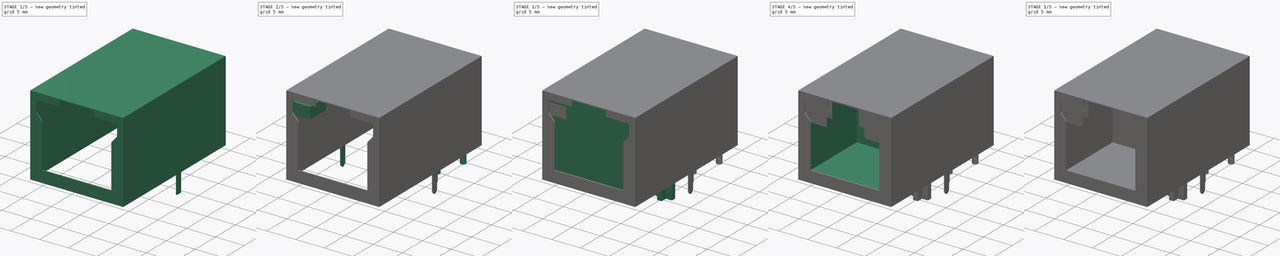
[diagram: build sequence overview — one tinted view per stage of 5, left to right]
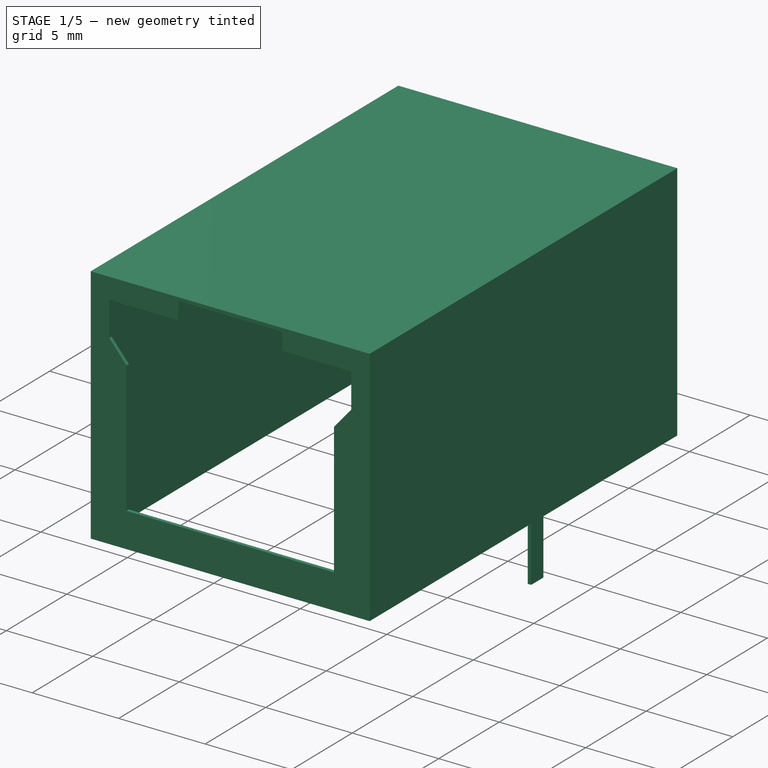
[diagram: stage 1 of 5 — iso view after this stage's code; geometry added in this stage tinted green]
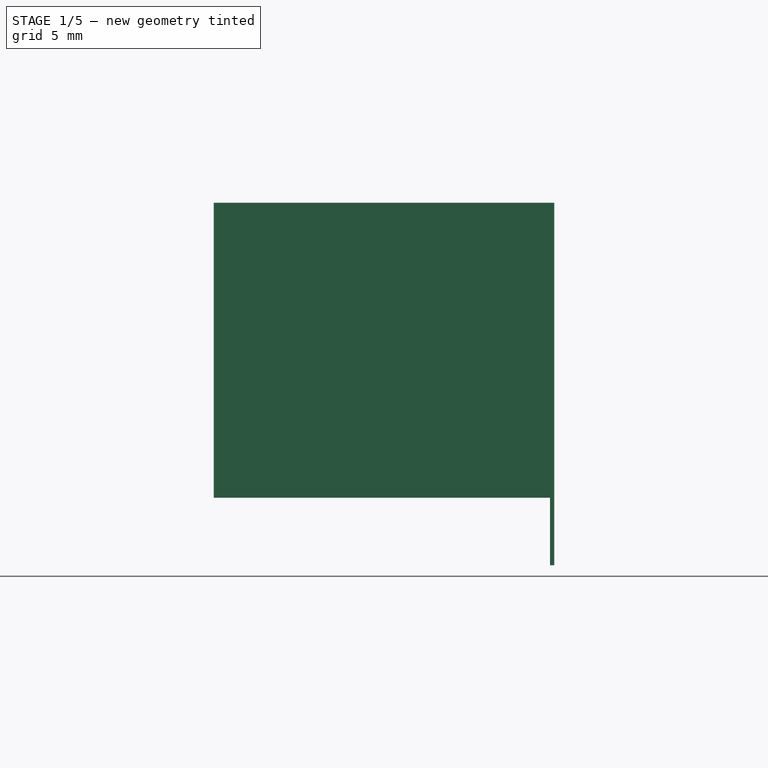
[diagram: stage 1 of 5 — front view after this stage's code; geometry added in this stage tinted green]
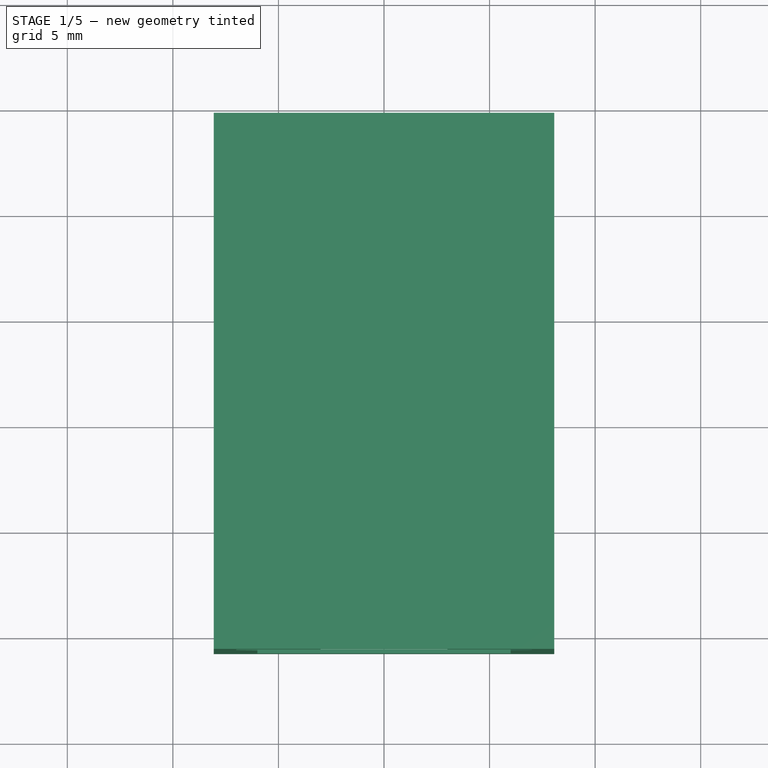
[diagram: stage 1 of 5 — top view after this stage's code; geometry added in this stage tinted green]
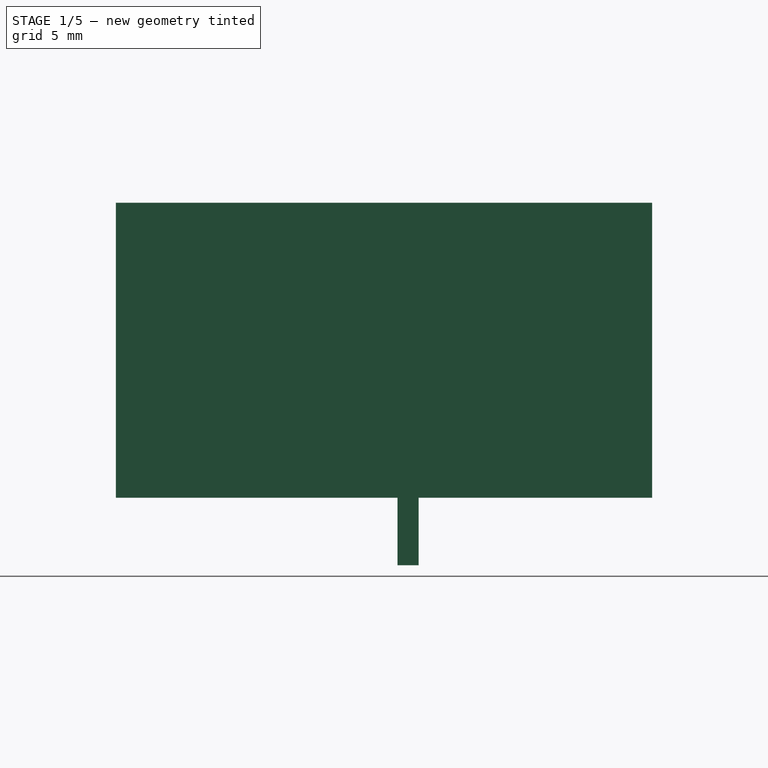
[diagram: stage 1 of 5 — right view after this stage's code; geometry added in this stage tinted green]
FCSTD DOCUMENT  (FreeCAD 0.16R6420 (Git))
Label: CONN_RJ45_MagJack_POEp
License: All rights reserved
LicenseURL: http://en.wikipedia.org/wiki/All_rights_reserved
objects: Sketcher::SketchObject×14, PartDesign::Pad×7, PartDesign::Pocket×7, PartDesign::Mirrored×3, PartDesign::Chamfer×1, Part::MultiFuse×1
note: 47 computed .brp shape members not serialized (recipe doc carries the construction recipe); baked Part::Feature solids carry a one-line shape summary decoded from their .brp

FEATURE [Sketcher::SketchObject] Sketch006  label="Metal_Base"
  expr: Constraints[13] = 14.61mm
  expr: Constraints[12] = -(10.79mm)
  expr: Constraints[14] = 16.13mm
  sketch-geometry (5):
    g0: LineSegment StartX=8.065 StartY=14.61 StartZ=0 EndX=-8.065 EndY=14.61 EndZ=0
    g1: LineSegment StartX=-8.065 StartY=14.61 StartZ=0 EndX=-8.065 EndY=-10.79 EndZ=0
    g2: LineSegment StartX=-8.065 StartY=-10.79 StartZ=0 EndX=8.065 EndY=-10.79 EndZ=0
    g3: LineSegment StartX=8.065 StartY=-10.79 StartZ=0 EndX=8.065 EndY=14.61 EndZ=0
    g4: LineSegment [constr] StartX=0 StartY=14.61 StartZ=0 EndX=0 EndY=-10.79 EndZ=0
  constraints (15):
    c: Coincident(g0,g1)
    c: Coincident(g1,g2)
    c: Coincident(g2,g3)
    c: Coincident(g3,g0)
    c: Horizontal(g0)
    c: Horizontal(g2)
    c: Vertical(g1)
    c: Vertical(g3)
    c: Vertical(g4)
    c: Symmetric(g2,g2,g4)
    c: Symmetric(g0,g0,g4)
    c: PointOnObject(g-1,g4)
    c: DistanceY(g-1,g4) = -10.79
    c: DistanceY(g-1,g4) = 14.61
    c: DistanceX(g2) = 16.13
FEATURE [PartDesign::Pad] Pad002  label="Metal_Pad"
  Length = 13.97
  Length2 = 100
  Sketch = -> Sketch006
  Type = 0
FEATURE [Sketcher::SketchObject] Sketch007  label="MetalCutInside"
  ExternalGeometry = -> [Pad002]
  Placement = pos=(0,0,0) rot=(1,0,0;3.14159rad)
  Support = -> Pad002 [Face5]
  sketch-geometry (5):
    g0: LineSegment StartX=-7.865 StartY=10.59 StartZ=0 EndX=7.865 EndY=10.59 EndZ=0
    g1: LineSegment StartX=7.865 StartY=10.59 StartZ=0 EndX=7.865 EndY=-14.41 EndZ=0
    g2: LineSegment StartX=7.865 StartY=-14.41 StartZ=0 EndX=-7.865 EndY=-14.41 EndZ=0
    g3: LineSegment StartX=-7.865 StartY=-14.41 StartZ=0 EndX=-7.865 EndY=10.59 EndZ=0
    g4: GeomPoint [constr] X=0 Y=10.59 Z=0
  constraints (13):
    c: Coincident(g0,g1)
    c: Coincident(g1,g2)
    c: Coincident(g2,g3)
    c: Coincident(g3,g0)
    c: Horizontal(g0)
    c: Horizontal(g2)
    c: Vertical(g1)
    c: Vertical(g3)
    c: DistanceX(g0,g-3) = -0.2
    c: Symmetric(g0,g0,g4)
    c: PointOnObject(g4,g-2)
    c: DistanceY(g0,g-3) = 0.2
    c: DistanceY(g1,g-4) = -0.2
FEATURE [PartDesign::Pocket] Pocket005  label="MetalCutInside_Pocket"
  Length = 13.7
  Sketch = -> Sketch007
  Type = 0
FEATURE [Sketcher::SketchObject] Sketch008  label="Metal_SoecketCutOut"
  ExternalGeometry = -> [Pocket005]
  Placement = pos=(0,-10.79,0) rot=(1,0,0;1.5708rad)
  Support = -> Pocket005 [Face6]
  sketch-geometry (13):
    g0: LineSegment StartX=-6 StartY=2 StartZ=0 EndX=6 EndY=2 EndZ=0
    g1: LineSegment StartX=6 StartY=2 StartZ=0 EndX=6 EndY=9.6 EndZ=0
    g2: LineSegment StartX=6 StartY=9.6 StartZ=0 EndX=7 EndY=10.77 EndZ=0
    g3: LineSegment StartX=7 StartY=10.77 StartZ=0 EndX=7 EndY=12.77 EndZ=0
    g4: LineSegment StartX=7 StartY=12.77 StartZ=0 EndX=3 EndY=12.77 EndZ=0
    g5: LineSegment StartX=3 StartY=12.77 StartZ=0 EndX=3 EndY=13.77 EndZ=0
    g6: LineSegment StartX=3 StartY=13.77 StartZ=0 EndX=-3 EndY=13.77 EndZ=0
    g7: LineSegment StartX=-3 StartY=13.77 StartZ=0 EndX=-3 EndY=12.77 EndZ=0
    g8: LineSegment StartX=-3 StartY=12.77 StartZ=0 EndX=-7 EndY=12.77 EndZ=0
    g9: LineSegment StartX=-7 StartY=12.77 StartZ=0 EndX=-7 EndY=10.77 EndZ=0
    g10: LineSegment StartX=-7 StartY=10.77 StartZ=0 EndX=-6 EndY=9.6 EndZ=0
    g11: LineSegment StartX=-6 StartY=9.6 StartZ=0 EndX=-6 EndY=2 EndZ=0
    g12: LineSegment [constr] StartX=0 StartY=0 StartZ=0 EndX=0 EndY=2 EndZ=0
  constraints (38):
    c: Horizontal(g0)
    c: Coincident(g0,g1)
    c: Vertical(g1)
    c: Coincident(g1,g2)
    c: Coincident(g2,g3)
    c: Vertical(g3)
    c: Coincident(g3,g4)
    c: Horizontal(g4)
    c: Coincident(g4,g5)
    c: Vertical(g5)
    c: Coincident(g5,g6)
    c: Horizontal(g6)
    c: Coincident(g6,g7)
    c: Vertical(g7)
    c: Coincident(g7,g8)
    c: Horizontal(g8)
    c: Coincident(g8,g9)
    c: Vertical(g9)
    c: Coincident(g9,g10)
    c: Coincident(g11,g10)
    c: Coincident(g11,g0)
    c: Vertical(g11)
    c: Equal(g5,g7)
    c: Equal(g8,g4)
    c: Equal(g9,g3)
    c: Equal(g10,g2)
    c: Equal(g1,g11)
    c: Vertical(g12)
    c: Symmetric(g0,g0,g12)
    c: Coincident(g12,g-1)
    c: DistanceY(g12) = 2
    c: DistanceX(g0) = 12
    c: DistanceY(g1) = 7.6
    c: DistanceY(g3) = 2
    c: DistanceY(g5,g-3) = 0.2
    c: DistanceX(g3,g8) = -14
    c: DistanceY(g5) = 1
    c: DistanceX(g6) = -6
FEATURE [PartDesign::Pocket] Pocket006  label="Metal_SoecketCutOut_Pocket"
  Length = 5
  Sketch = -> Sketch008
  Type = 2
FEATURE [Sketcher::SketchObject] Sketch013  label="Metal_ShieldPin"
  Placement = pos=(0,0,0) rot=(1,0,0;3.14159rad)
  Support = -> Pocket006 [Face4]
  expr: Constraints[10] = 16.13mm / 2
  sketch-geometry (5):
    g0: LineSegment StartX=7.865 StartY=-2.55 StartZ=0 EndX=8.065 EndY=-2.55 EndZ=0
    g1: LineSegment StartX=8.065 StartY=-2.55 StartZ=0 EndX=8.065 EndY=-3.55 EndZ=0
    g2: LineSegment StartX=8.065 StartY=-3.55 StartZ=0 EndX=7.865 EndY=-3.55 EndZ=0
    g3: LineSegment StartX=7.865 StartY=-3.55 StartZ=0 EndX=7.865 EndY=-2.55 EndZ=0
    g4: GeomPoint [constr] X=8.065 Y=-3.05 Z=0
  constraints (13):
    c: Coincident(g0,g1)
    c: Coincident(g1,g2)
    c: Coincident(g2,g3)
    c: Coincident(g3,g0)
    c: Horizontal(g0)
    c: Horizontal(g2)
    c: Vertical(g1)
    c: Vertical(g3)
    c: DistanceY(g1) = -1
    c: DistanceX(g0) = 0.2
    c: DistanceX(g0) = 8.065
    c: Symmetric(g1,g1,g4)
    c: DistanceY(g-1,g4) = -3.05
FEATURE [PartDesign::Pad] Pad006  label="Metal_ShieldPin_Pad"
  Length = 3.2
  Length2 = 100
  Sketch = -> Sketch013
  Type = 0
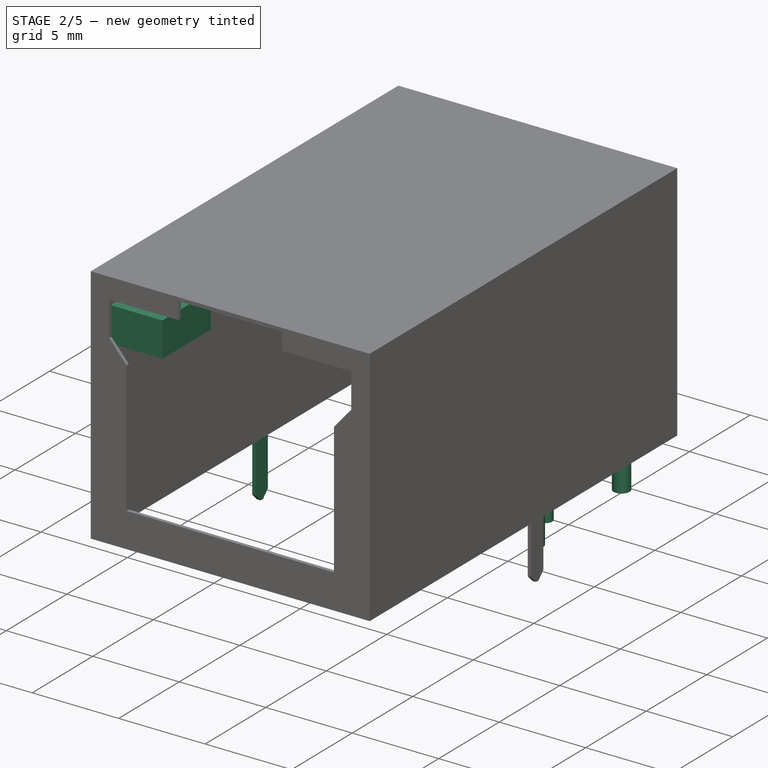
[diagram: stage 2 of 5 — iso view after this stage's code; geometry added in this stage tinted green]
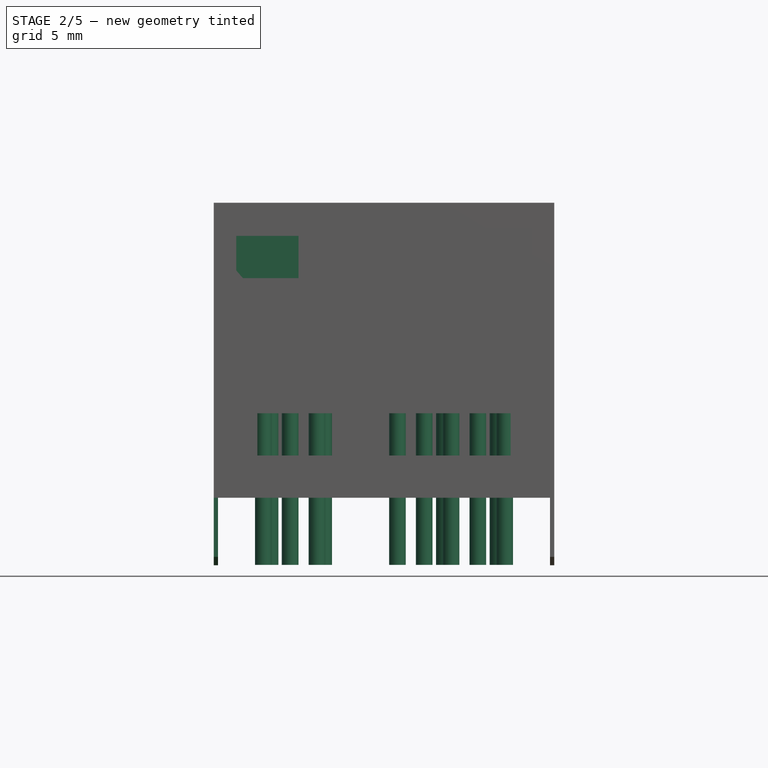
[diagram: stage 2 of 5 — front view after this stage's code; geometry added in this stage tinted green]
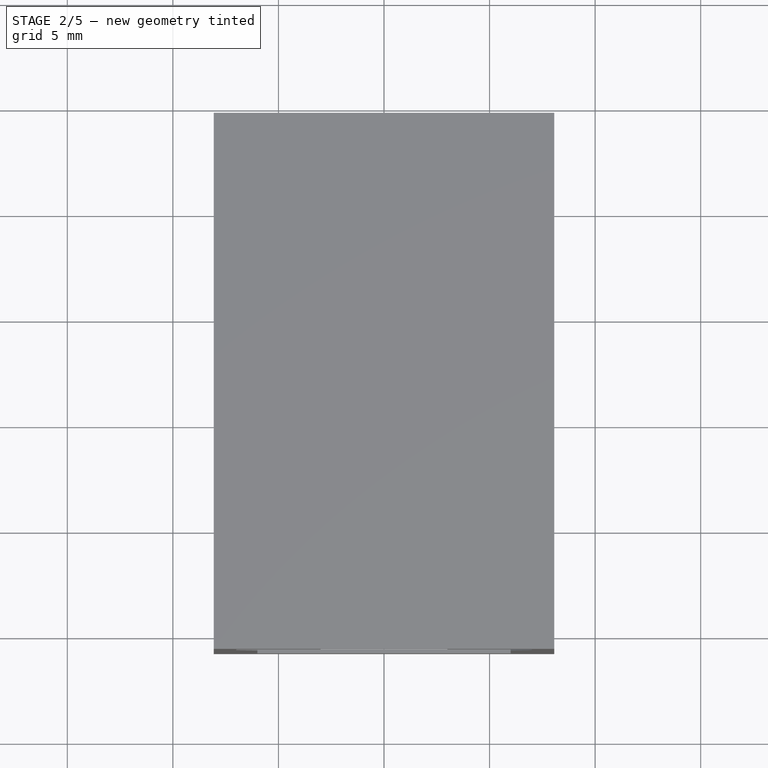
[diagram: stage 2 of 5 — top view after this stage's code; geometry added in this stage tinted green]
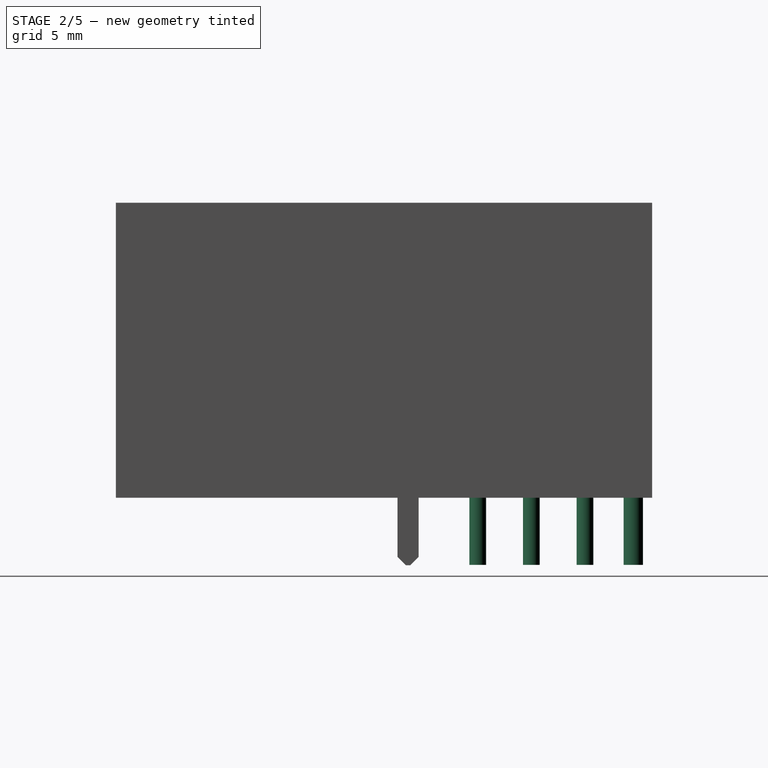
[diagram: stage 2 of 5 — right view after this stage's code; geometry added in this stage tinted green]
FEATURE [PartDesign::Pad] Pad004  label="LED_Left_Green_Pad"
  Length = 4
  Length2 = 100
  Placement = pos=(0,-10.6,0) rot=(1,0,0;1.5708rad)
  Reversed = true
  Sketch = -> Sketch011
  Type = 0
FEATURE [Sketcher::SketchObject] Sketch012  label="Pins"
  expr: Constraints[33] = (1.02mm - 0.1mm) / 2
  expr: Constraints[32] = (0.89mm - 0.1mm) / 2
  sketch-geometry (20):
    g0: LineSegment [constr] StartX=-5.715 StartY=0 StartZ=0 EndX=5.715 EndY=0 EndZ=0
    g1: LineSegment [constr] StartX=-5.715 StartY=8.89 StartZ=0 EndX=5.715 EndY=8.89 EndZ=0
    g2: LineSegment [constr] StartX=-5.715 StartY=11.43 StartZ=0 EndX=5.715 EndY=11.43 EndZ=0
    g3: LineSegment [constr] StartX=-5.715 StartY=6.35 StartZ=0 EndX=5.715 EndY=6.35 EndZ=0
    g4: LineSegment [constr] StartX=-5.715 StartY=13.72 StartZ=0 EndX=5.715 EndY=13.72 EndZ=0
    g5: LineSegment [constr] StartX=-5.715 StartY=0 StartZ=0 EndX=-5.715 EndY=13.72 EndZ=0
    g6: Circle CenterX=-4.445 CenterY=11.43 CenterZ=0 NormalX=0 NormalY=0 NormalZ=1 Radius=0.395
    g7: Circle CenterX=-4.445 CenterY=6.35 CenterZ=0 NormalX=0 NormalY=0 NormalZ=1 Radius=0.395
    g8: Circle CenterX=-5.715 CenterY=8.89 CenterZ=0 NormalX=0 NormalY=0 NormalZ=1 Radius=0.395
    g9: Circle CenterX=-3.175 CenterY=8.89 CenterZ=0 NormalX=0 NormalY=0 NormalZ=1 Radius=0.395
    g10: Circle CenterX=3.175 CenterY=6.35 CenterZ=0 NormalX=0 NormalY=0 NormalZ=1 Radius=0.395
    g11: Circle CenterX=5.715 CenterY=6.35 CenterZ=0 NormalX=0 NormalY=0 NormalZ=1 Radius=0.395
    g12: Circle CenterX=0.635 CenterY=6.35 CenterZ=0 NormalX=0 NormalY=0 NormalZ=1 Radius=0.395
    g13: Circle CenterX=1.905 CenterY=8.89 CenterZ=0 NormalX=0 NormalY=0 NormalZ=1 Radius=0.395
    g14: Circle CenterX=4.445 CenterY=8.89 CenterZ=0 NormalX=0 NormalY=0 NormalZ=1 Radius=0.395
    g15: Circle CenterX=2.925 CenterY=13.72 CenterZ=0 NormalX=0 NormalY=0 NormalZ=1 Radius=0.46
    g16: Circle CenterX=5.465 CenterY=13.72 CenterZ=0 NormalX=0 NormalY=0 NormalZ=1 Radius=0.46
    g17: Circle CenterX=-5.465 CenterY=13.72 CenterZ=0 NormalX=0 NormalY=0 NormalZ=1 Radius=0.46
    g18: Circle CenterX=-2.925 CenterY=13.72 CenterZ=0 NormalX=0 NormalY=0 NormalZ=1 Radius=0.46
    g19: LineSegment [constr] StartX=-4.445 StartY=13.72 StartZ=0 EndX=-4.445 EndY=0 EndZ=0
  constraints (63):
    c: Horizontal(g0)
    c: Symmetric(g0,g0,g-1)
    c: DistanceX(g0) = 11.43
    c: Horizontal(g1)
    c: Horizontal(g2)
    c: Horizontal(g3)
    c: Horizontal(g4)
    c: Equal(g4,g2)
    c: Equal(g2,g1)
    c: Equal(g1,g3)
    c: Equal(g0,g3)
    c: Coincident(g5,g0)
    c: Vertical(g5)
    c: PointOnObject(g3,g5)
    c: PointOnObject(g1,g5)
    c: PointOnObject(g2,g5)
    c: DistanceY(g1,g0) = -8.89
    c: DistanceY(g3,g1) = 2.54
    c: Coincident(g5,g4)
    c: DistanceY(g2,g0) = -11.43
    c: DistanceY(g4,g0) = -13.72
    c: Equal(g17,g18)
    c: Equal(g18,g15)
    c: Equal(g15,g16)
    c: Equal(g9,g6)
    c: Equal(g6,g8)
    c: Equal(g8,g7)
    c: Equal(g7,g12)
    c: Equal(g12,g13)
    c: Equal(g13,g14)
    c: Equal(g14,g10)
    c: Equal(g10,g11)
    c: Radius(g7) = 0.395
    c: Radius(g16) = 0.46
    c: Coincident(g8,g1)
    c: PointOnObject(g9,g1)
    c: PointOnObject(g13,g1)
    c: PointOnObject(g14,g1)
    c: PointOnObject(g12,g3)
    c: PointOnObject(g10,g3)
    c: PointOnObject(g11,g3)
    c: PointOnObject(g7,g3)
    c: PointOnObject(g6,g2)
    c: Vertical(g19)
    c: PointOnObject(g7,g19)
    c: DistanceX(g19,g0) = -1.27
    c: PointOnObject(g6,g19)
    c: DistanceX(g9,g1) = -2.54
    c: DistanceX(g12,g0) = -6.35
    c: DistanceX(g12,g10) = 2.54
    c: DistanceX(g10,g11) = 2.54
    c: DistanceX(g13,g14) = 2.54
    c: DistanceX(g13,g12) = -1.27
    c: PointOnObject(g19,g4)
    c: PointOnObject(g19,g0)
    c: PointOnObject(g17,g4)
    c: PointOnObject(g18,g4)
    c: PointOnObject(g15,g4)
    c: PointOnObject(g16,g4)
    c: DistanceX(g17,g18) = 2.54
    c: DistanceX(g15,g16) = 2.54
    c: DistanceX(g17,g0) = -0.25
    c: DistanceX(g0,g15) = 8.64
FEATURE [PartDesign::Pad] Pad005  label="Pins_Pad"
  Length = 4
  Length2 = 3.18
  Sketch = -> Sketch012
  Type = 4
FEATURE [PartDesign::Mirrored] Mirrored002  label="Metal_ShieldPin_Mirrored"
  MirrorPlane = -> Sketch013 [V_Axis]
  Originals = -> [Pad006]
FEATURE [PartDesign::Chamfer] Chamfer  label="Metal_ShieldPins_Chamfer"
  Base = -> Mirrored002 [Edge3,Edge1,Edge68,Edge72]
  Size = 0.4
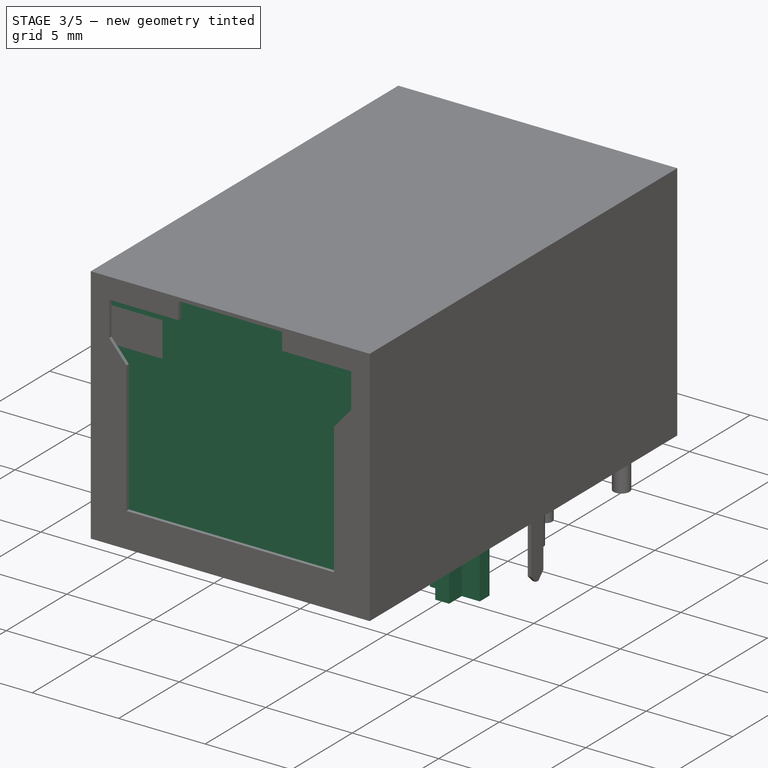
[diagram: stage 3 of 5 — iso view after this stage's code; geometry added in this stage tinted green]
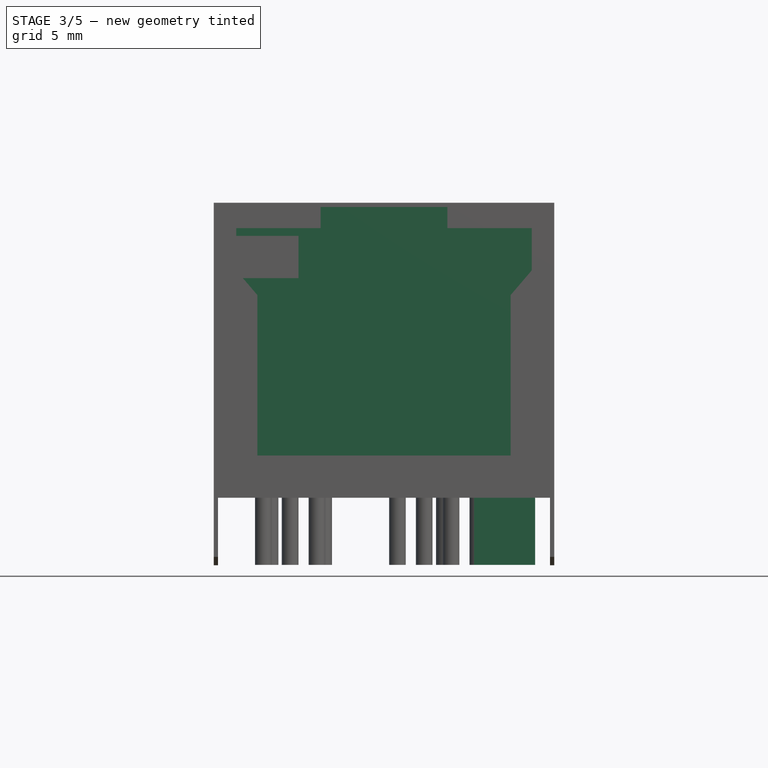
[diagram: stage 3 of 5 — front view after this stage's code; geometry added in this stage tinted green]
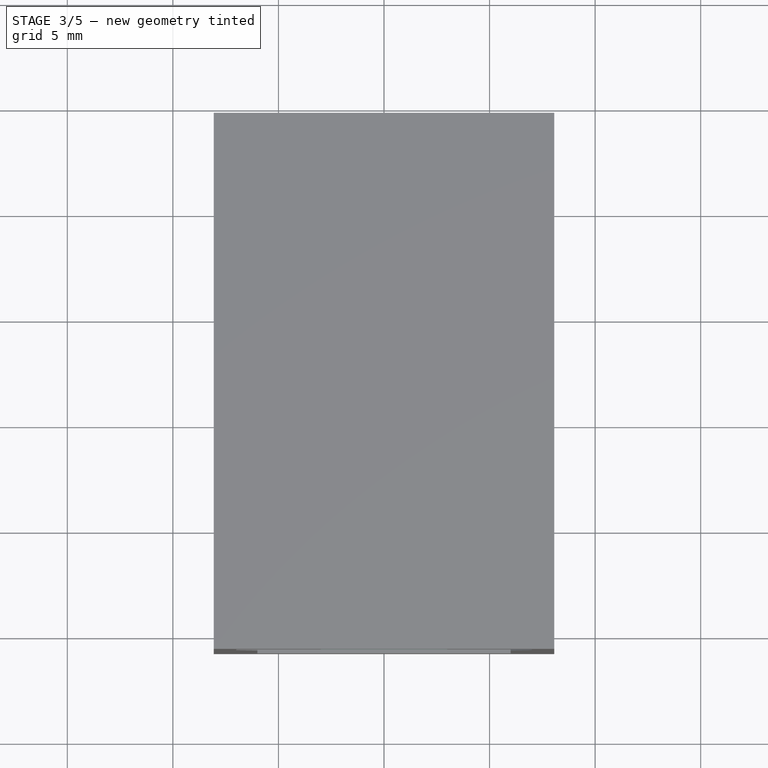
[diagram: stage 3 of 5 — top view after this stage's code; geometry added in this stage tinted green]
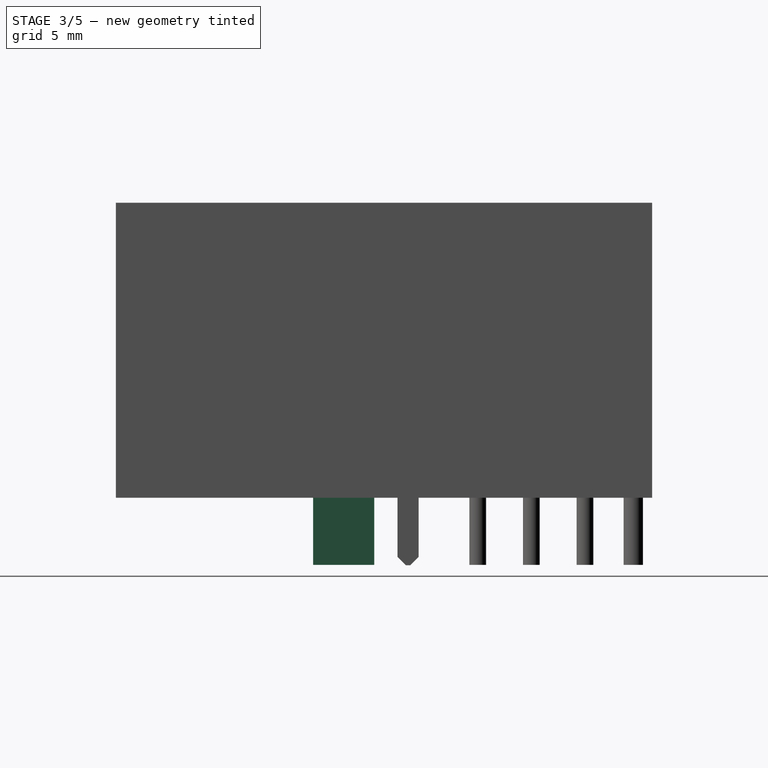
[diagram: stage 3 of 5 — right view after this stage's code; geometry added in this stage tinted green]
FEATURE [Sketcher::SketchObject] Sketch  label="Plastic_BasePart"
  expr: Constraints[13] = 14.61mm - 0.2mm
  expr: Constraints[12] = -(10.79mm - 0.2mm)
  expr: Constraints[14] = 16.13mm - 0.4mm
  sketch-geometry (5):
    g0: LineSegment StartX=7.865 StartY=14.41 StartZ=0 EndX=-7.865 EndY=14.41 EndZ=0
    g1: LineSegment StartX=-7.865 StartY=14.41 StartZ=0 EndX=-7.865 EndY=-10.59 EndZ=0
    g2: LineSegment StartX=-7.865 StartY=-10.59 StartZ=0 EndX=7.865 EndY=-10.59 EndZ=0
    g3: LineSegment StartX=7.865 StartY=-10.59 StartZ=0 EndX=7.865 EndY=14.41 EndZ=0
    g4: LineSegment [constr] StartX=0 StartY=14.41 StartZ=0 EndX=0 EndY=-10.59 EndZ=0
  constraints (15):
    c: Coincident(g0,g1)
    c: Coincident(g1,g2)
    c: Coincident(g2,g3)
    c: Coincident(g3,g0)
    c: Horizontal(g0)
    c: Horizontal(g2)
    c: Vertical(g1)
    c: Vertical(g3)
    c: Vertical(g4)
    c: Symmetric(g2,g2,g4)
    c: Symmetric(g0,g0,g4)
    c: PointOnObject(g-1,g4)
    c: DistanceY(g-1,g4) = -10.59
    c: DistanceY(g-1,g4) = 14.41
    c: DistanceX(g2) = 15.73
FEATURE [PartDesign::Pad] Pad  label="Plastic_BasePart_Pad"
  Length = 13.77
  Length2 = 100
  Sketch = -> Sketch
  Type = 0
  expr: Length = 13.97mm - 0.2mm
FEATURE [Sketcher::SketchObject] Sketch001  label="MountingPod"
  Placement = pos=(0,0,0) rot=(1,0,0;3.14159rad)
  Support = -> Pad [Face5]
  sketch-geometry (14):
    g0: Circle [constr] CenterX=5.715 CenterY=0 CenterZ=0 NormalX=0 NormalY=0 NormalZ=1 Radius=1.5
    g1: LineSegment [constr] StartX=-5.715 StartY=0 StartZ=0 EndX=5.715 EndY=0 EndZ=0
    g2: LineSegment StartX=5.315 StartY=1.44568 StartZ=0 EndX=5.315 EndY=0.4 EndZ=0
    g3: LineSegment StartX=5.315 StartY=0.4 StartZ=0 EndX=4.26932 EndY=0.4 EndZ=0
    g4: LineSegment StartX=4.26932 StartY=0.4 StartZ=0 EndX=4.26932 EndY=-0.4 EndZ=0
    g5: LineSegment StartX=4.26932 StartY=-0.4 StartZ=0 EndX=5.315 EndY=-0.4 EndZ=0
    g6: LineSegment StartX=5.315 StartY=-0.4 StartZ=0 EndX=5.315 EndY=-1.44568 EndZ=0
    g7: LineSegment StartX=5.315 StartY=-1.44568 StartZ=0 EndX=6.115 EndY=-1.44568 EndZ=0
    g8: LineSegment StartX=6.115 StartY=-1.44568 StartZ=0 EndX=6.115 EndY=-0.4 EndZ=0
    g9: LineSegment StartX=6.115 StartY=-0.4 StartZ=0 EndX=7.16068 EndY=-0.4 EndZ=0
    g10: LineSegment StartX=7.16068 StartY=-0.4 StartZ=0 EndX=7.16068 EndY=0.4 EndZ=0
    g11: LineSegment StartX=7.16068 StartY=0.4 StartZ=0 EndX=6.115 EndY=0.4 EndZ=0
    g12: LineSegment StartX=6.115 StartY=0.4 StartZ=0 EndX=6.115 EndY=1.44568 EndZ=0
    g13: LineSegment StartX=6.115 StartY=1.44568 StartZ=0 EndX=5.315 EndY=1.44568 EndZ=0
  constraints (41):
    c: Horizontal(g1)
    c: Coincident(g1,g0)
    c: Radius(g0) = 1.5
    c: Symmetric(g1,g1,g-1)
    c: DistanceX(g1) = 11.43
    c: Vertical(g2)
    c: Coincident(g2,g3)
    c: Horizontal(g3)
    c: Coincident(g3,g4)
    c: Vertical(g4)
    c: Coincident(g4,g5)
    c: Horizontal(g5)
    c: Coincident(g5,g6)
    c: Vertical(g6)
    c: Coincident(g6,g7)
    c: Horizontal(g7)
    c: Coincident(g7,g8)
    c: Vertical(g8)
    c: Coincident(g8,g9)
    c: Horizontal(g9)
    c: Coincident(g9,g10)
    c: Vertical(g10)
    c: Coincident(g10,g11)
    c: Horizontal(g11)
    c: Coincident(g11,g12)
    c: Vertical(g12)
    c: Coincident(g12,g13)
    c: Coincident(g13,g2)
    c: Horizontal(g13)
    c: Equal(g10,g7)
    c: Equal(g5,g3)
    c: Equal(g2,g12)
    c: Equal(g11,g9)
    c: Equal(g8,g6)
    c: Equal(g4,g10)
    c: Equal(g5,g6)
    c: Equal(g8,g9)
    c: Equal(g2,g3)
    c: Symmetric(g5,g11,g0)
    c: PointOnObject(g12,g0)
    c: DistanceX(g13) = -0.8
FEATURE [PartDesign::Pad] Pad001  label="MountingPod_Pad"
  Length = 3.18
  Length2 = 100
  Sketch = -> Sketch001
  Type = 0
FEATURE [Sketcher::SketchObject] Sketch010  label="LED_Right"
  Placement = pos=(0,-10.6,0) rot=(-1,0,0;4.71239rad)
  sketch-geometry (4):
    g0: LineSegment StartX=4.05 StartY=12.4 StartZ=0 EndX=7.05 EndY=12.4 EndZ=0
    g1: LineSegment StartX=7.05 StartY=12.4 StartZ=0 EndX=7.05 EndY=10.4 EndZ=0
    g2: LineSegment StartX=7.05 StartY=10.4 StartZ=0 EndX=4.05 EndY=10.4 EndZ=0
    g3: LineSegment StartX=4.05 StartY=10.4 StartZ=0 EndX=4.05 EndY=12.4 EndZ=0
  constraints (12):
    c: Coincident(g0,g1)
    c: Coincident(g1,g2)
    c: Coincident(g2,g3)
    c: Coincident(g3,g0)
    c: Horizontal(g0)
    c: Horizontal(g2)
    c: Vertical(g1)
    c: Vertical(g3)
    c: DistanceX(g0) = 3
    c: DistanceY(g1) = -2
    c: DistanceX(g2) = 4.05
    c: DistanceY(g2) = 10.4
FEATURE [Sketcher::SketchObject] Sketch011  label="LED_Left"
  Placement = pos=(0,-10.6,0) rot=(1,0,0;1.5708rad)
  sketch-geometry (4):
    g0: LineSegment StartX=-4.05 StartY=12.4 StartZ=0 EndX=-7.05 EndY=12.4 EndZ=0
    g1: LineSegment StartX=-7.05 StartY=12.4 StartZ=0 EndX=-7.05 EndY=10.4 EndZ=0
    g2: LineSegment StartX=-7.05 StartY=10.4 StartZ=0 EndX=-4.05 EndY=10.4 EndZ=0
    g3: LineSegment StartX=-4.05 StartY=10.4 StartZ=0 EndX=-4.05 EndY=12.4 EndZ=0
  constraints (12):
    c: Coincident(g0,g1)
    c: Coincident(g1,g2)
    c: Coincident(g2,g3)
    c: Coincident(g3,g0)
    c: Horizontal(g0)
    c: Horizontal(g2)
    c: Vertical(g1)
    c: Vertical(g3)
    c: DistanceX(g0) = -3
    c: DistanceY(g1) = -2
    c: DistanceX(g2) = -4.05
    c: DistanceY(g2) = 10.4
FEATURE [PartDesign::Pad] Pad003  label="LED_Right_Yellow_Pad"
  Length = 4
  Length2 = 100
  Placement = pos=(0,-10.6,0) rot=(-1,0,0;4.71239rad)
  Reversed = true
  Sketch = -> Sketch010
  Type = 0
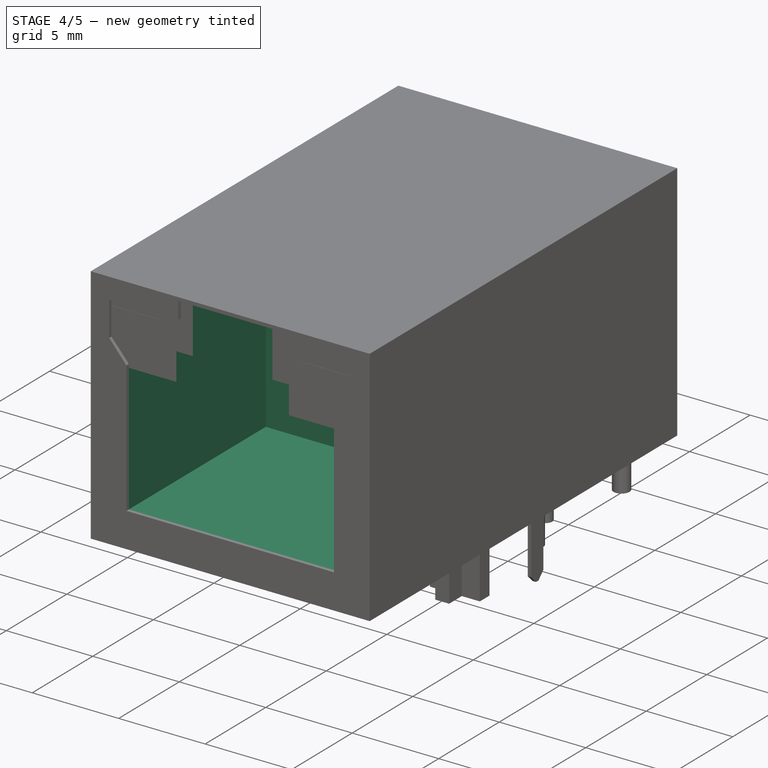
[diagram: stage 4 of 5 — iso view after this stage's code; geometry added in this stage tinted green]
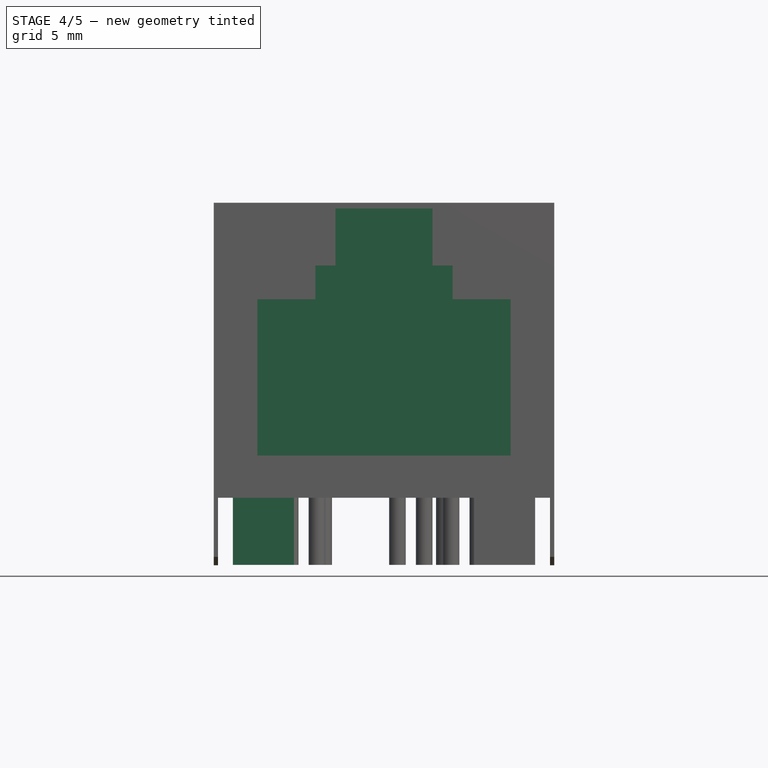
[diagram: stage 4 of 5 — front view after this stage's code; geometry added in this stage tinted green]
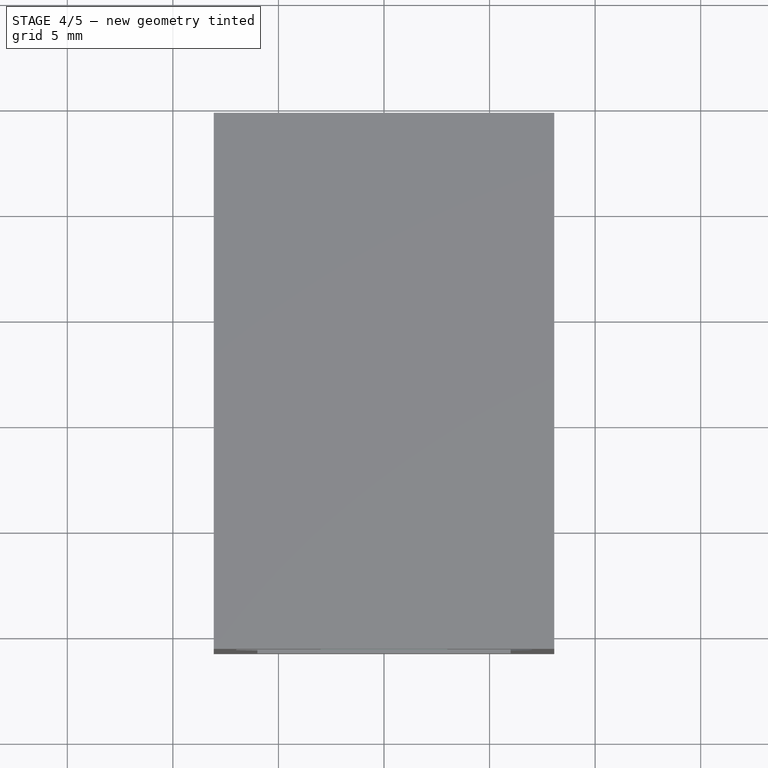
[diagram: stage 4 of 5 — top view after this stage's code; geometry added in this stage tinted green]
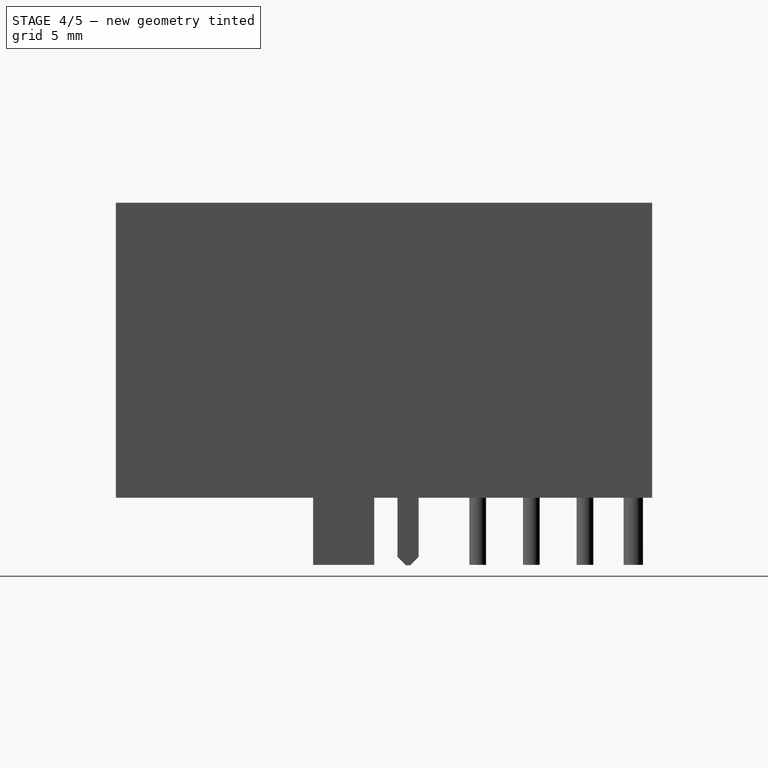
[diagram: stage 4 of 5 — right view after this stage's code; geometry added in this stage tinted green]
FEATURE [PartDesign::Mirrored] Mirrored  label="MountingPod_Mirrored"
  MirrorPlane = -> Sketch001 [V_Axis]
  Originals = -> [Pad001]
FEATURE [Sketcher::SketchObject] Sketch002  label="Socket1"
  Placement = pos=(0,-10.59,0) rot=(1,0,0;1.5708rad)
  Support = -> Mirrored [Face6]
  sketch-geometry (14):
    g0: LineSegment StartX=-6 StartY=2 StartZ=0 EndX=6 EndY=2 EndZ=0
    g1: LineSegment StartX=6 StartY=2 StartZ=0 EndX=6 EndY=9.4 EndZ=0
    g2: LineSegment StartX=6 StartY=9.4 StartZ=0 EndX=3.25 EndY=9.4 EndZ=0
    g3: LineSegment StartX=3.25 StartY=9.4 StartZ=0 EndX=3.25 EndY=11 EndZ=0
    g4: LineSegment StartX=3.25 StartY=11 StartZ=0 EndX=2.15 EndY=11 EndZ=0
    g5: LineSegment [constr] StartX=2.15 StartY=11 StartZ=0 EndX=2.15 EndY=14 EndZ=0
    g6: LineSegment [constr] StartX=2.15 StartY=14 StartZ=0 EndX=-2.15 EndY=14 EndZ=0
    g7: LineSegment [constr] StartX=-2.15 StartY=14 StartZ=0 EndX=-2.15 EndY=11 EndZ=0
    g8: LineSegment StartX=-2.15 StartY=11 StartZ=0 EndX=-3.25 EndY=11 EndZ=0
    g9: LineSegment StartX=-3.25 StartY=11 StartZ=0 EndX=-3.25 EndY=9.4 EndZ=0
    g10: LineSegment StartX=-3.25 StartY=9.4 StartZ=0 EndX=-6 EndY=9.4 EndZ=0
    g11: LineSegment StartX=-6 StartY=9.4 StartZ=0 EndX=-6 EndY=2 EndZ=0
    g12: LineSegment [constr] StartX=0 StartY=0 StartZ=0 EndX=0 EndY=2 EndZ=0
    g13: LineSegment StartX=-2.15 StartY=11 StartZ=0 EndX=2.15 EndY=11 EndZ=0
  constraints (41):
    c: Horizontal(g0)
    c: Coincident(g0,g1)
    c: Vertical(g1)
    c: Coincident(g1,g2)
    c: Horizontal(g2)
    c: Coincident(g2,g3)
    c: Coincident(g3,g4)
    c: Horizontal(g4)
    c: Coincident(g4,g5)
    c: Vertical(g5)
    c: Coincident(g5,g6)
    c: Horizontal(g6)
    c: Coincident(g6,g7)
    c: Vertical(g7)
    c: Coincident(g7,g8)
    c: Horizontal(g8)
    c: Coincident(g8,g9)
    c: Vertical(g9)
    c: Coincident(g9,g10)
    c: Horizontal(g10)
    c: Coincident(g10,g11)
    c: Coincident(g11,g0)
    c: Vertical(g11)
    c: Vertical(g3)
    c: Equal(g11,g1)
    c: Equal(g9,g3)
    c: Equal(g7,g5)
    c: Equal(g8,g4)
    c: Equal(g10,g2)
    c: Coincident(g12,g-1)
    c: Vertical(g12)
    c: Symmetric(g0,g0,g12)
    c: DistanceY(g12) = 2
    c: DistanceX(g0) = 12
    c: DistanceX(g9,g2) = 6.5
    c: DistanceX(g7,g4) = 4.3
    c: DistanceY(g1) = 7.4
    c: DistanceY(g4,g12) = -9
    c: DistanceY(g5,g12) = -12
    c: Coincident(g13,g7)
    c: Coincident(g13,g4)
FEATURE [PartDesign::Pocket] Pocket  label="Socket1_Pocket"
  Length = 11.3
  Sketch = -> Sketch002
  Type = 0
  expr: Length = 11.5mm - 0.2mm
FEATURE [Sketcher::SketchObject] Sketch004  label="Socket2"
  Placement = pos=(0,-10.59,0) rot=(1,0,0;1.5708rad)
  Support = -> Pocket [Face6]
  expr: Constraints[10] = 2mm + 9mm
  expr: Constraints[9] = 2mm + 12mm
  sketch-geometry (5):
    g0: LineSegment StartX=-2.3 StartY=14 StartZ=0 EndX=2.3 EndY=14 EndZ=0
    g1: LineSegment StartX=2.3 StartY=14 StartZ=0 EndX=2.3 EndY=11 EndZ=0
    g2: LineSegment StartX=2.3 StartY=11 StartZ=0 EndX=-2.3 EndY=11 EndZ=0
    g3: LineSegment StartX=-2.3 StartY=11 StartZ=0 EndX=-2.3 EndY=14 EndZ=0
    g4: GeomPoint [constr] X=0 Y=11 Z=0
  constraints (13):
    c: Coincident(g0,g1)
    c: Coincident(g1,g2)
    c: Coincident(g2,g3)
    c: Coincident(g3,g0)
    c: Horizontal(g0)
    c: Horizontal(g2)
    c: Vertical(g1)
    c: Vertical(g3)
    c: DistanceX(g2) = -4.6
    c: DistanceY(g-1,g0) = 14
    c: DistanceY(g-1,g1) = 11
    c: Symmetric(g2,g2,g4)
    c: PointOnObject(g4,g-2)
FEATURE [PartDesign::Pocket] Pocket002  label="Socket2_Pocket"
  Length = 5.4
  Sketch = -> Sketch004
  Type = 0
FEATURE [Sketcher::SketchObject] Sketch003  label="Socket_Latch"
  ExternalGeometry = -> [Pocket002]
  Placement = pos=(0,0,13.77) rot=(0,0,1;0rad)
  Support = -> Pocket002 [Face5]
  expr: Constraints[9] = 5.4mm - 2.4mm
  sketch-geometry (6):
    g0: LineSegment StartX=-3.25 StartY=-8.19 StartZ=0 EndX=3.25 EndY=-8.19 EndZ=0
    g1: LineSegment StartX=3.25 StartY=-8.19 StartZ=0 EndX=3.25 EndY=-5.19 EndZ=0
    g2: LineSegment StartX=3.25 StartY=-5.19 StartZ=0 EndX=-3.25 EndY=-5.19 EndZ=0
    g3: LineSegment StartX=-3.25 StartY=-5.19 StartZ=0 EndX=-3.25 EndY=-8.19 EndZ=0
    g4: LineSegment [constr] StartX=0 StartY=-10.59 StartZ=0 EndX=0 EndY=-8.19 EndZ=0
    g5: LineSegment [constr] StartX=-2.3 StartY=-10.59 StartZ=0 EndX=2.3 EndY=-10.59 EndZ=0
  constraints (16):
    c: Coincident(g0,g1)
    c: Coincident(g1,g2)
    c: Coincident(g2,g3)
    c: Coincident(g3,g0)
    c: Horizontal(g0)
    c: Horizontal(g2)
    c: Vertical(g1)
    c: Vertical(g3)
    c: DistanceX(g2) = -6.5
    c: DistanceY(g1) = 3
    c: Vertical(g4)
    c: Symmetric(g0,g0,g4)
    c: DistanceY(g4) = 2.4
    c: Coincident(g5,g-3)
    c: Coincident(g5,g-4)
    c: Symmetric(g5,g5,g4)
FEATURE [PartDesign::Pocket] Pocket003  label="Socket_Latch_Pocket"
  Length = 5
  Sketch = -> Sketch003
  Type = 2
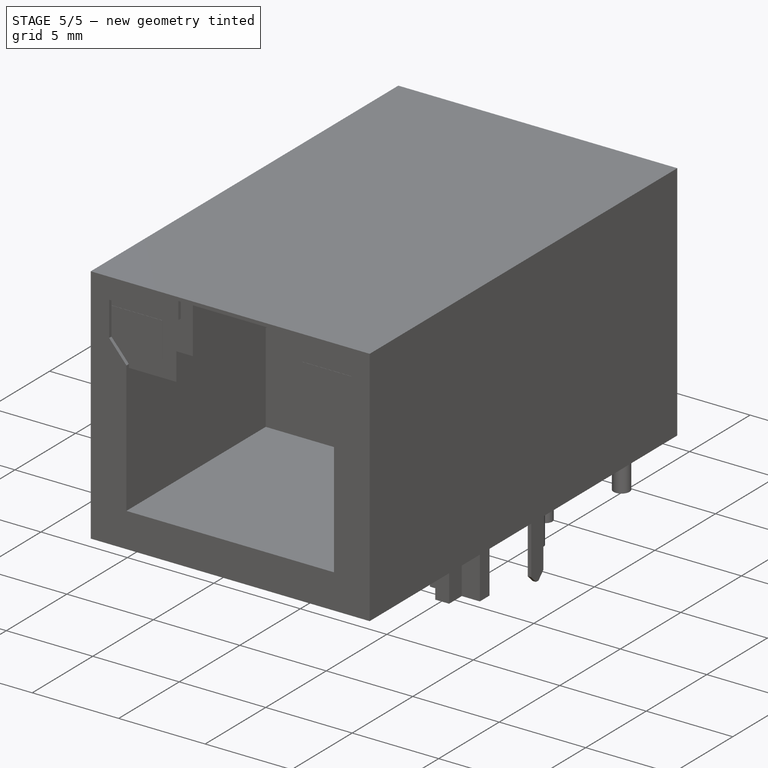
[diagram: stage 5 of 5 — iso view after this stage's code; geometry added in this stage tinted green]
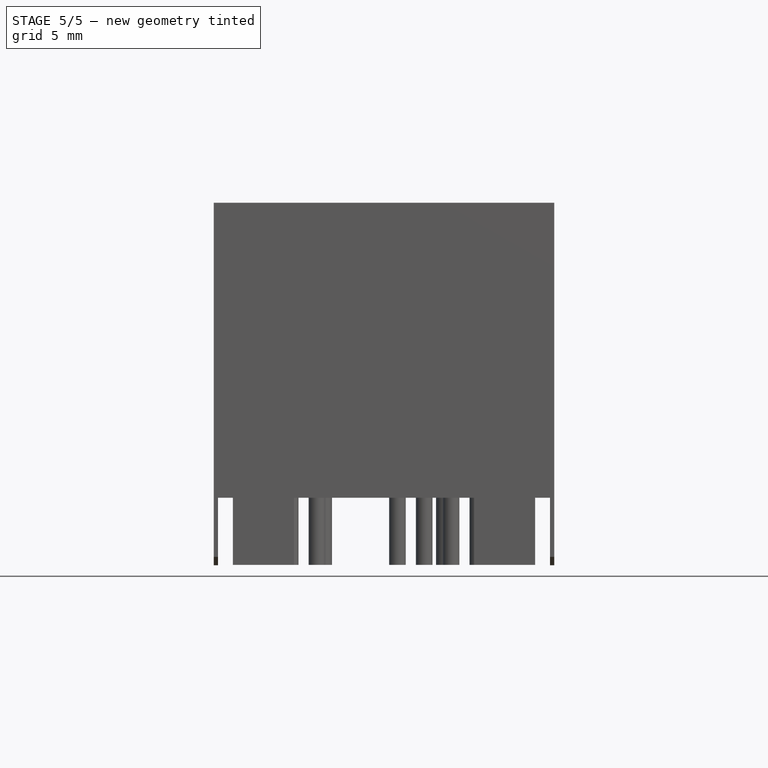
[diagram: stage 5 of 5 — front view after this stage's code; geometry added in this stage tinted green]
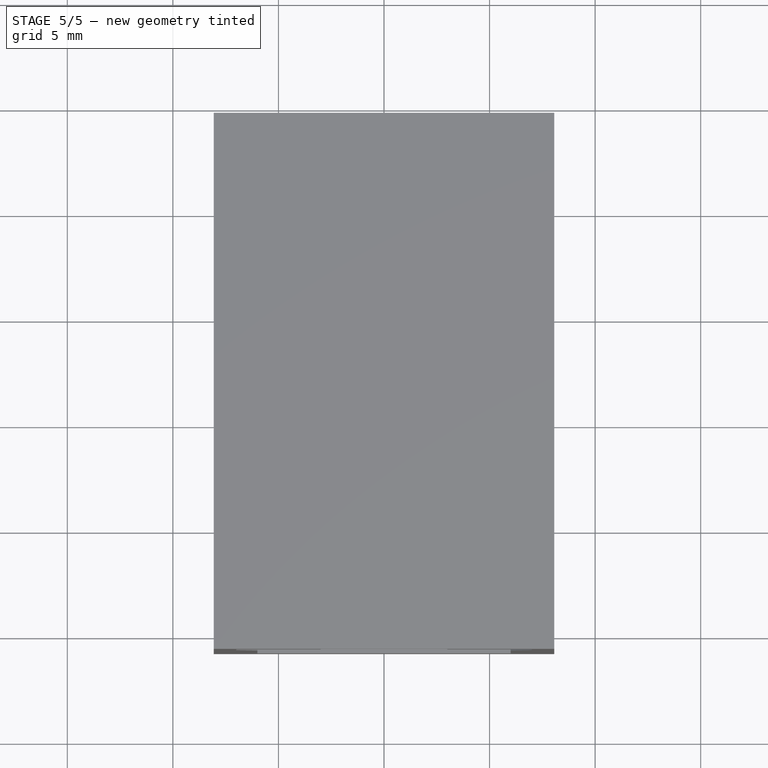
[diagram: stage 5 of 5 — top view after this stage's code; geometry added in this stage tinted green]
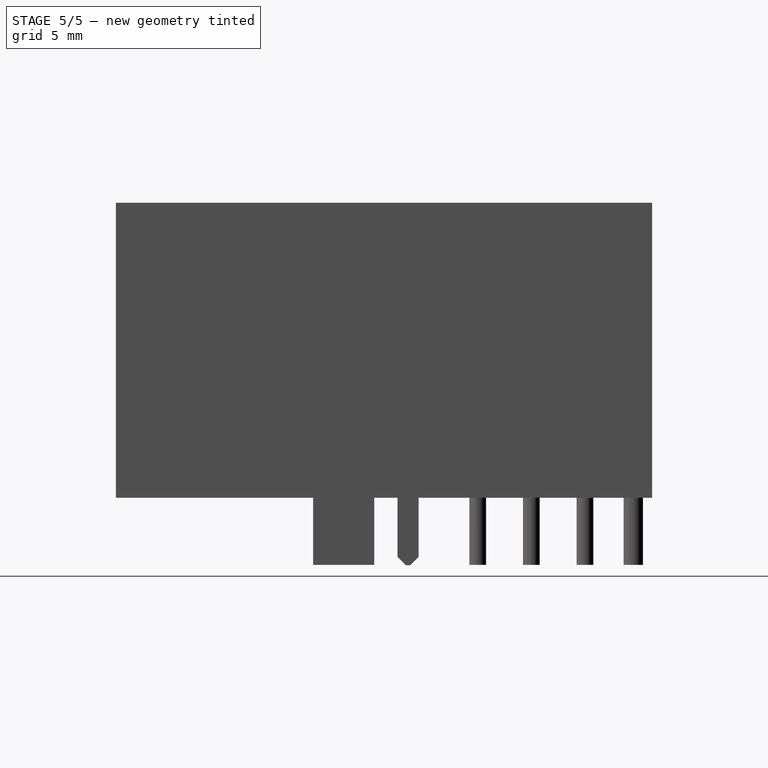
[diagram: stage 5 of 5 — right view after this stage's code; geometry added in this stage tinted green]
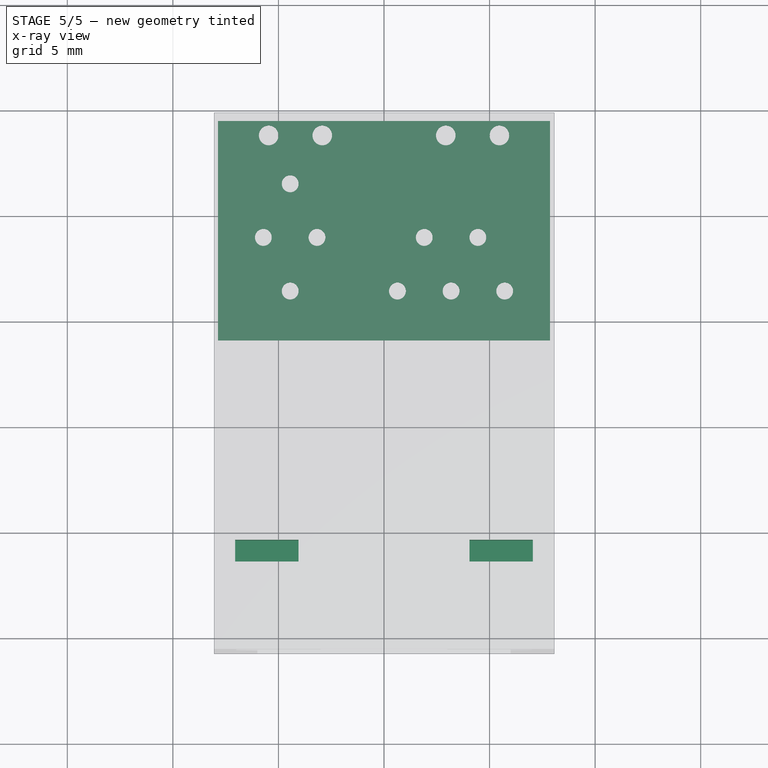
[diagram: stage 5 of 5 — x-ray composite at the top view; earlier geometry ghosted, this stage's added geometry solid]
FEATURE [Sketcher::SketchObject] Sketch005  label="TransformerPlace"
  Placement = pos=(7.865,0,0) rot=(0.57735,0.57735,0.57735;2.0944rad)
  Support = -> Pocket003 [Face2]
  sketch-geometry (4):
    g0: LineSegment StartX=15 StartY=15 StartZ=0 EndX=4 EndY=15 EndZ=0
    g1: LineSegment StartX=4 StartY=15 StartZ=0 EndX=4 EndY=3 EndZ=0
    g2: LineSegment StartX=4 StartY=3 StartZ=0 EndX=15 EndY=3 EndZ=0
    g3: LineSegment StartX=15 StartY=3 StartZ=0 EndX=15 EndY=15 EndZ=0
  constraints (12):
    c: Coincident(g0,g1)
    c: Coincident(g1,g2)
    c: Coincident(g2,g3)
    c: Coincident(g3,g0)
    c: Horizontal(g0)
    c: Horizontal(g2)
    c: Vertical(g1)
    c: Vertical(g3)
    c: DistanceX(g-1,g1) = 4
    c: DistanceY(g-1,g1) = 3
    c: DistanceX(g0) = -11
    c: DistanceY(g3) = 12
FEATURE [PartDesign::Pocket] Pocket004  label="TransformerPlace_Pocket"
  Length = 5
  Sketch = -> Sketch005
  Type = 1
FEATURE [Sketcher::SketchObject] Sketch009  label="LED_Right_Cut"
  ExternalGeometry = -> [Pocket004]
  Placement = pos=(0,-10.59,0) rot=(1,0,0;1.5708rad)
  Support = -> Pocket004 [Face6]
  sketch-geometry (4):
    g0: LineSegment StartX=4.05 StartY=12.4 StartZ=0 EndX=7.05 EndY=12.4 EndZ=0
    g1: LineSegment StartX=7.05 StartY=12.4 StartZ=0 EndX=7.05 EndY=10.4 EndZ=0
    g2: LineSegment StartX=7.05 StartY=10.4 StartZ=0 EndX=4.05 EndY=10.4 EndZ=0
    g3: LineSegment StartX=4.05 StartY=10.4 StartZ=0 EndX=4.05 EndY=12.4 EndZ=0
  constraints (12):
    c: Coincident(g0,g1)
    c: Coincident(g1,g2)
    c: Coincident(g2,g3)
    c: Coincident(g3,g0)
    c: Horizontal(g0)
    c: Horizontal(g2)
    c: Vertical(g1)
    c: Vertical(g3)
    c: DistanceX(g0) = 3
    c: DistanceY(g1) = -2
    c: DistanceX(g-3,g2) = 0.8
    c: DistanceY(g-3,g2) = 1
FEATURE [PartDesign::Pocket] Pocket007  label="LED_Right_Pocket"
  Length = 5
  Sketch = -> Sketch009
  Type = 0
FEATURE [PartDesign::Mirrored] Mirrored001  label="LED_Left_Mirrored"
  MirrorPlane = -> Sketch009 [V_Axis]
  Originals = -> [Pocket007]
FEATURE [Part::MultiFuse] Fusion  label="CONN_RJ45_MagJack_POEp"
  Shapes = -> [Chamfer,Pad005,Pad004,Pad003,Mirrored001]
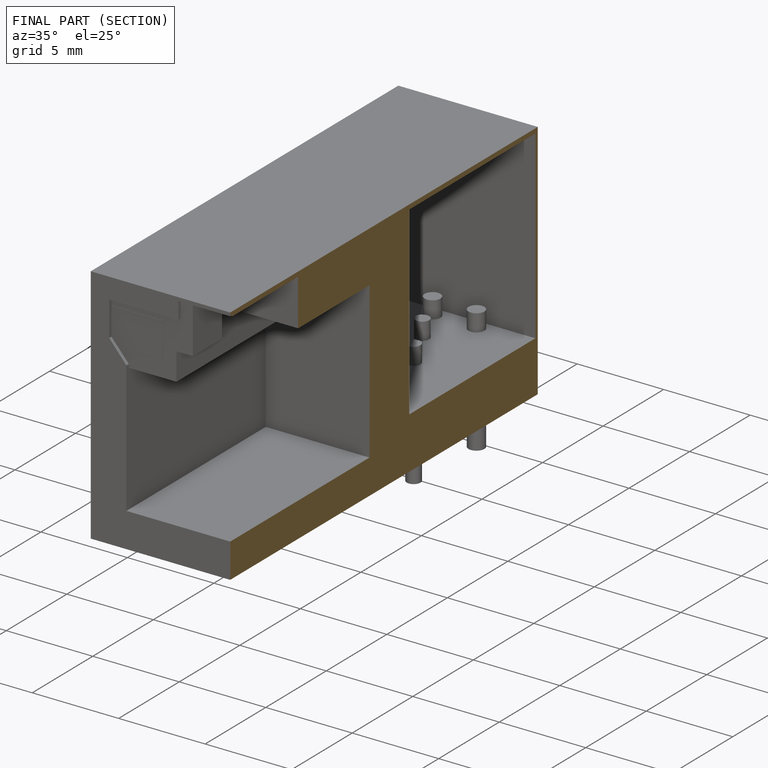
[diagram: finished part — half-section view (interior)]
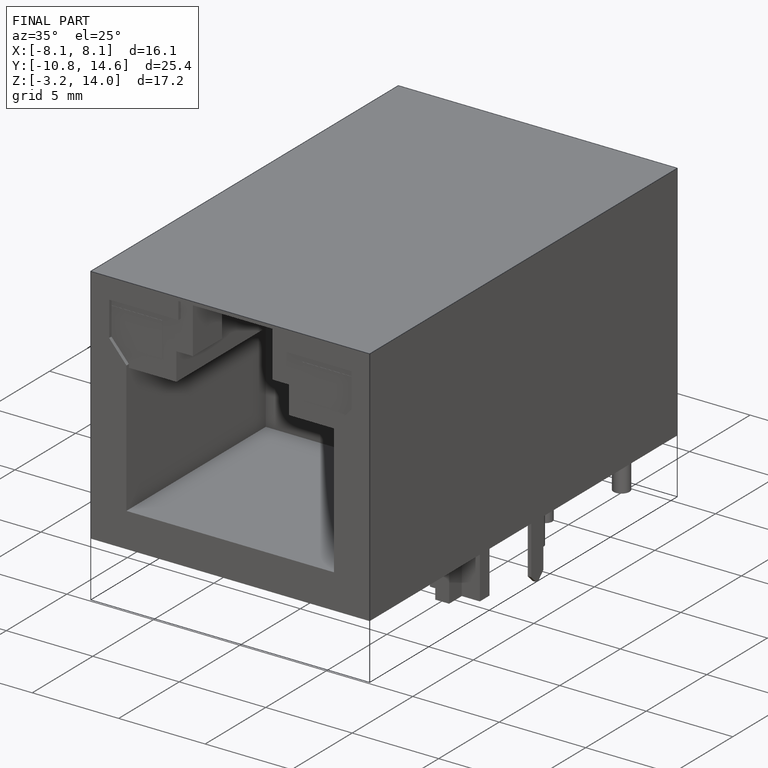
[diagram: finished part — iso view with bounding-box wireframe]
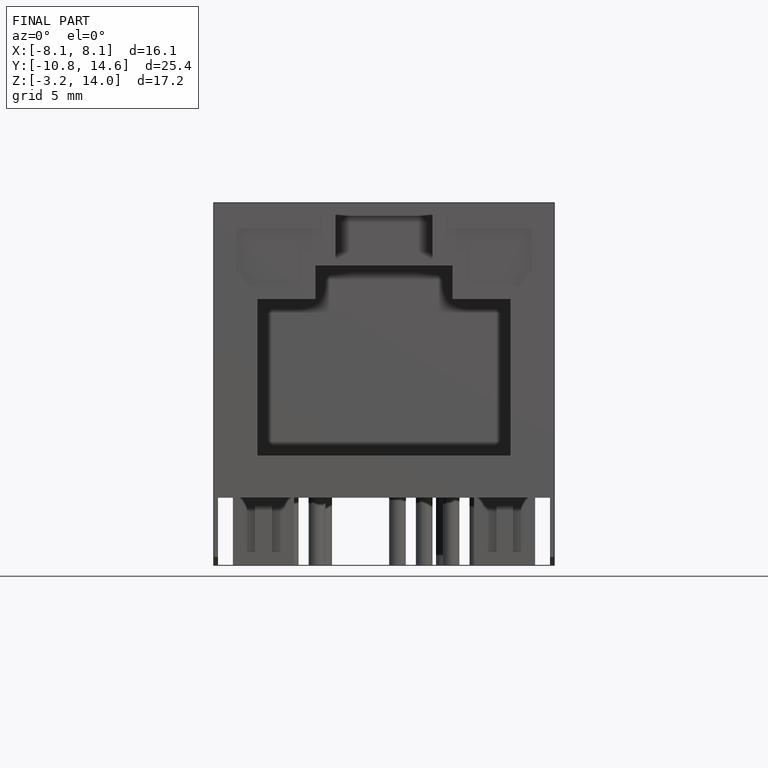
[diagram: finished part — front view with bounding-box wireframe]
